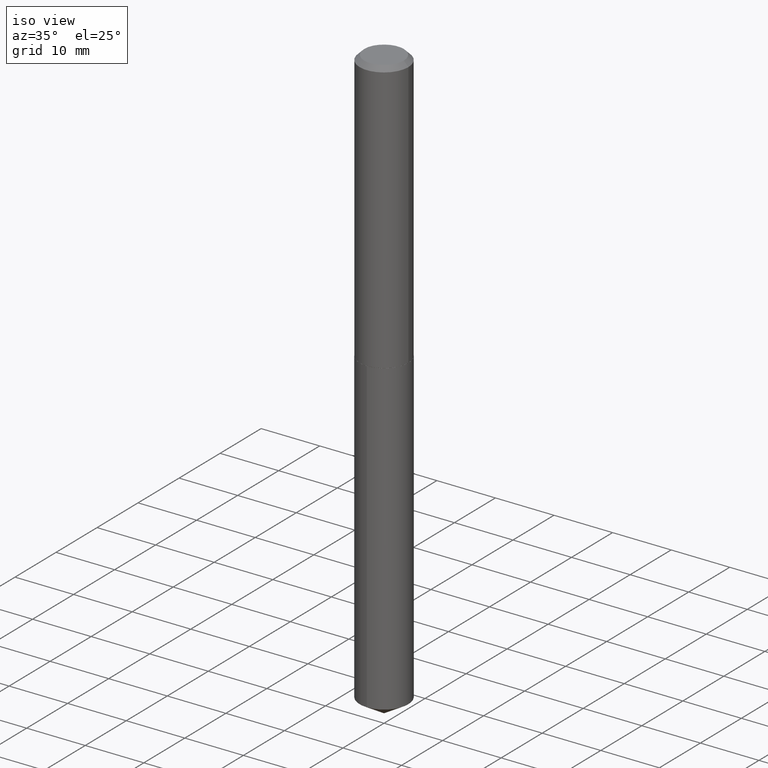
[diagram: clean part render]
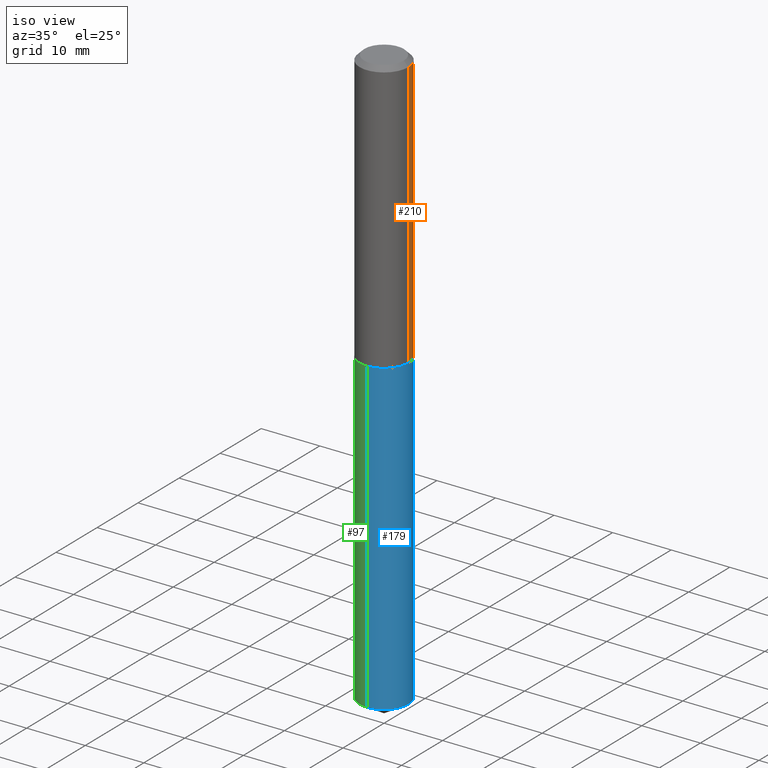
[diagram: same view with three faces highlighted in distinct colors, each labeled with its STEP entity id]
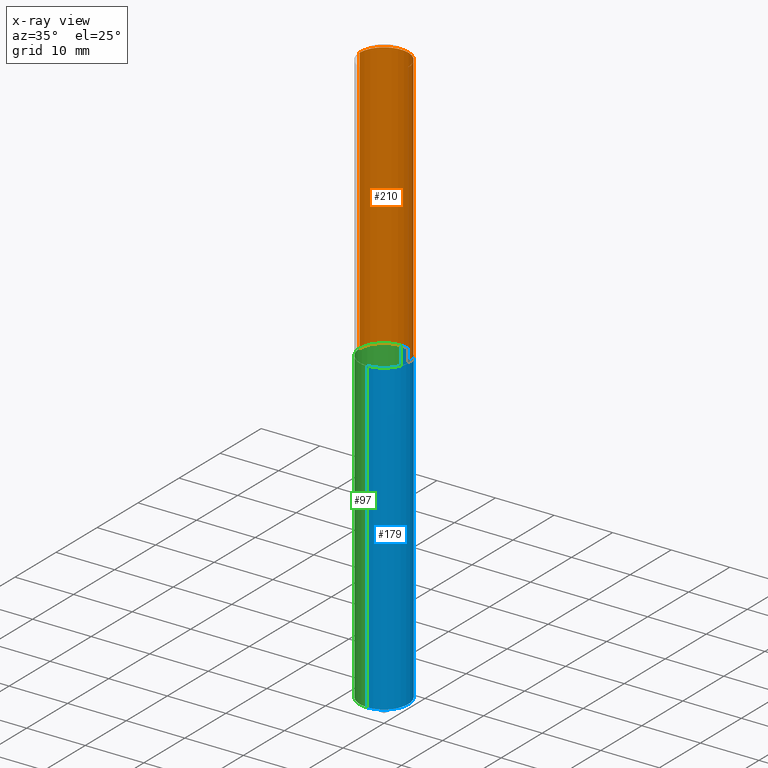
[diagram: x-ray of the same camera — body ghosted, the three highlighted faces saturated]
A machine part, iso view with three faces highlighted in distinct colors.
The next image is the same camera in x-ray (body ghosted, the three faces saturated) — at least one of them is partly hidden behind the body in this view.
Their STEP definitions:

[orange] entity #210 — the highlighted cylindrical surface (edge-blend (fillet) strip) has radius 4.1669 mm, axis along (-0, 0, 1).
#3 = LINE ( 'NONE', #88, #195 ) ;
#35 = AXIS2_PLACEMENT_3D ( 'NONE', #113, #229, #78 ) ;
#46 = VERTEX_POINT ( 'NONE', #383 ) ;
#54 = DIRECTION ( 'NONE',  ( 1.000000000000000000, -6.982962677686268288E-15, 4.876176775795935793E-29 ) ) ;
#60 = EDGE_CURVE ( 'NONE', #118, #72, #141, .T. ) ;
#72 = VERTEX_POINT ( 'NONE', #387 ) ;
#74 = EDGE_CURVE ( 'NONE', #46, #72, #287, .T. ) ;
#78 = DIRECTION ( 'NONE',  ( 1.000000000000000000, -6.982962677686266711E-15, 0.000000000000000000 ) ) ;
#87 = EDGE_LOOP ( 'NONE', ( #136, #268, #190, #99 ) ) ;
#88 = CARTESIAN_POINT ( 'NONE',  ( 0.1640500000000001124, -1.145555027274433043E-15, 7.999368000693238548E-30 ) ) ;
#90 = DIRECTION ( 'NONE',  ( -2.445468806185136877E-29, 3.491481338843145188E-15, 1.000000000000000000 ) ) ;
#99 = ORIENTED_EDGE ( 'NONE', *, *, #371, .F. ) ;
#112 = DIRECTION ( 'NONE',  ( -2.445468806185136877E-29, 3.491481338843145188E-15, 1.000000000000000000 ) ) ;
#113 = CARTESIAN_POINT ( 'NONE',  ( 7.642090019328608793E-31, -1.091087918388491130E-16, -0.03125000000000023592 ) ) ;
#118 = VERTEX_POINT ( 'NONE', #176 ) ;
#136 = ORIENTED_EDGE ( 'NONE', *, *, #351, .T. ) ;
#141 = LINE ( 'NONE', #263, #259 ) ;
#155 = DIRECTION ( 'NONE',  ( 1.000000000000000000, -6.982962677686264344E-15, 0.000000000000000000 ) ) ;
#176 = CARTESIAN_POINT ( 'NONE',  ( -0.1640500000000002512, -5.215385936855286140E-15, -1.827599999999999891 ) ) ;
#190 = ORIENTED_EDGE ( 'NONE', *, *, #74, .F. ) ;
#195 = VECTOR ( 'NONE', #90, 39.37007874015748143 ) ;
#203 = FACE_OUTER_BOUND ( 'NONE', #87, .T. ) ;
#210 = ADVANCED_FACE ( 'NONE', ( #203 ), #322, .T. ) ;
#229 = DIRECTION ( 'NONE',  ( -2.445468806185136597E-29, 3.491481338843145583E-15, 1.000000000000000000 ) ) ;
#237 = CIRCLE ( 'NONE', #364, 0.1640500000000002512 ) ;
#238 = DIRECTION ( 'NONE',  ( -2.445468806185136597E-29, 3.491481338843145583E-15, 1.000000000000000000 ) ) ;
#259 = VECTOR ( 'NONE', #112, 39.37007874015748143 ) ;
#263 = CARTESIAN_POINT ( 'NONE',  ( -0.1640500000000001124, 1.165645358014445154E-15, -8.069513015563179171E-30 ) ) ;
#268 = ORIENTED_EDGE ( 'NONE', *, *, #60, .T. ) ;
#287 = CIRCLE ( 'NONE', #35, 0.1640500000000000291 ) ;
#294 = CARTESIAN_POINT ( 'NONE',  ( 0.000000000000000000, 0.000000000000000000, 0.000000000000000000 ) ) ;
#299 = CARTESIAN_POINT ( 'NONE',  ( 4.469338790183955624E-29, -6.381031294869733069E-15, -1.827599999999999891 ) ) ;
#322 = CYLINDRICAL_SURFACE ( 'NONE', #365, 0.1640500000000001124 ) ;
#337 = CARTESIAN_POINT ( 'NONE',  ( 0.1640500000000002512, -7.526586322144166309E-15, -1.827599999999999891 ) ) ;
#351 = EDGE_CURVE ( 'NONE', #352, #118, #237, .T. ) ;
#352 = VERTEX_POINT ( 'NONE', #337 ) ;
#363 = DIRECTION ( 'NONE',  ( -2.445468806185136597E-29, 3.491481338843145583E-15, 1.000000000000000000 ) ) ;
#364 = AXIS2_PLACEMENT_3D ( 'NONE', #299, #363, #155 ) ;
#365 = AXIS2_PLACEMENT_3D ( 'NONE', #294, #238, #54 ) ;
#371 = EDGE_CURVE ( 'NONE', #352, #46, #3, .T. ) ;
#383 = CARTESIAN_POINT ( 'NONE',  ( 0.1640500000000000291, -1.254663819113281355E-15, -0.03125000000000023592 ) ) ;
#387 = CARTESIAN_POINT ( 'NONE',  ( -0.1640500000000000291, -2.079424685339844945E-15, -0.03125000000000023592 ) ) ;

[blue] entity #179 — the highlighted cylindrical surface (edge-blend (fillet) strip) has radius 4.1669 mm, axis along (-0, 0, 1).
#9 = EDGE_CURVE ( 'NONE', #256, #250, #207, .T. ) ;
#14 = CARTESIAN_POINT ( 'NONE',  ( 9.540838568338950055E-29, -1.362174284697678349E-14, -3.901428815448529708 ) ) ;
#19 = DIRECTION ( 'NONE',  ( -2.445476571768493601E-29, 3.491470218085789051E-15, 1.000000000000000000 ) ) ;
#20 = CARTESIAN_POINT ( 'NONE',  ( 4.470561524587048986E-29, -6.382777035539155361E-15, -1.828100000000000058 ) ) ;
#29 = VECTOR ( 'NONE', #269, 39.37007874015748143 ) ;
#32 = EDGE_CURVE ( 'NONE', #220, #375, #390, .T. ) ;
#40 = DIRECTION ( 'NONE',  ( -2.445476571768493321E-29, 3.491470218085789051E-15, 1.000000000000000000 ) ) ;
#45 = DIRECTION ( 'NONE',  ( -6.982962677686265133E-15, -1.000000000000000000, 3.330506545156066257E-15 ) ) ;
#59 = CARTESIAN_POINT ( 'NONE',  ( 1.165645358014539817E-15, 0.1640499999999864011, -3.901428815448530152 ) ) ;
#70 = EDGE_LOOP ( 'NONE', ( #247, #73, #275, #130 ) ) ;
#73 = ORIENTED_EDGE ( 'NONE', *, *, #107, .T. ) ;
#77 = DIRECTION ( 'NONE',  ( -6.982962677686265133E-15, -1.000000000000000000, 3.330506545156066257E-15 ) ) ;
#102 = AXIS2_PLACEMENT_3D ( 'NONE', #14, #252, #45 ) ;
#107 = EDGE_CURVE ( 'NONE', #375, #250, #358, .T. ) ;
#125 = CARTESIAN_POINT ( 'NONE',  ( 1.165645358014539817E-15, 0.1640499999999935898, -1.828100000000000724 ) ) ;
#130 = ORIENTED_EDGE ( 'NONE', *, *, #334, .F. ) ;
#144 = VECTOR ( 'NONE', #19, 39.37007874015748143 ) ;
#179 = ADVANCED_FACE ( 'NONE', ( #260 ), #357, .T. ) ;
#194 = AXIS2_PLACEMENT_3D ( 'NONE', #20, #385, #77 ) ;
#197 = CARTESIAN_POINT ( 'NONE',  ( 4.470561524587048986E-29, -6.382777035539155361E-15, -1.828100000000000058 ) ) ;
#207 = CIRCLE ( 'NONE', #330, 0.1640500000000000014 ) ;
#220 = VERTEX_POINT ( 'NONE', #264 ) ;
#239 = CARTESIAN_POINT ( 'NONE',  ( -1.145555027274387092E-15, -0.1640500000000063852, -1.828099999999999614 ) ) ;
#247 = ORIENTED_EDGE ( 'NONE', *, *, #32, .T. ) ;
#250 = VERTEX_POINT ( 'NONE', #125 ) ;
#252 = DIRECTION ( 'NONE',  ( -2.445476571768493321E-29, 3.491470218085789051E-15, 1.000000000000000000 ) ) ;
#256 = VERTEX_POINT ( 'NONE', #362 ) ;
#260 = FACE_OUTER_BOUND ( 'NONE', #70, .T. ) ;
#264 = CARTESIAN_POINT ( 'NONE',  ( -1.145555027274336999E-15, -0.1640500000000136849, -3.901428815448529264 ) ) ;
#269 = DIRECTION ( 'NONE',  ( -2.445476571768493601E-29, 3.491470218085789051E-15, 1.000000000000000000 ) ) ;
#275 = ORIENTED_EDGE ( 'NONE', *, *, #9, .F. ) ;
#305 = LINE ( 'NONE', #239, #29 ) ;
#330 = AXIS2_PLACEMENT_3D ( 'NONE', #197, #40, #344 ) ;
#334 = EDGE_CURVE ( 'NONE', #220, #256, #305, .T. ) ;
#344 = DIRECTION ( 'NONE',  ( -6.982962677686265133E-15, -1.000000000000000000, 3.330506545156066257E-15 ) ) ;
#357 = CYLINDRICAL_SURFACE ( 'NONE', #194, 0.1640500000000000014 ) ;
#358 = LINE ( 'NONE', #360, #144 ) ;
#360 = CARTESIAN_POINT ( 'NONE',  ( 1.165645358014488738E-15, 0.1640499999999935898, -1.828100000000000724 ) ) ;
#362 = CARTESIAN_POINT ( 'NONE',  ( -1.145555027274387092E-15, -0.1640500000000063852, -1.828099999999999614 ) ) ;
#375 = VERTEX_POINT ( 'NONE', #59 ) ;
#385 = DIRECTION ( 'NONE',  ( -2.445476571768493321E-29, 3.491470218085789051E-15, 1.000000000000000000 ) ) ;
#390 = CIRCLE ( 'NONE', #102, 0.1640500000000000014 ) ;

[green] entity #97 — the highlighted cylindrical surface (edge-blend (fillet) strip) has radius 4.1669 mm, axis along (-0, 0, 1).
#19 = DIRECTION ( 'NONE',  ( -2.445476571768493601E-29, 3.491470218085789051E-15, 1.000000000000000000 ) ) ;
#29 = VECTOR ( 'NONE', #269, 39.37007874015748143 ) ;
#43 = AXIS2_PLACEMENT_3D ( 'NONE', #217, #241, #242 ) ;
#48 = DIRECTION ( 'NONE',  ( -2.445476571768493321E-29, 3.491470218085789051E-15, 1.000000000000000000 ) ) ;
#49 = CARTESIAN_POINT ( 'NONE',  ( 4.470561524587048986E-29, -6.382777035539155361E-15, -1.828100000000000058 ) ) ;
#51 = DIRECTION ( 'NONE',  ( -6.982962677686265133E-15, -1.000000000000000000, 3.330506545156066257E-15 ) ) ;
#59 = CARTESIAN_POINT ( 'NONE',  ( 1.165645358014539817E-15, 0.1640499999999864011, -3.901428815448530152 ) ) ;
#81 = AXIS2_PLACEMENT_3D ( 'NONE', #326, #289, #51 ) ;
#82 = FACE_OUTER_BOUND ( 'NONE', #370, .T. ) ;
#96 = ORIENTED_EDGE ( 'NONE', *, *, #107, .F. ) ;
#97 = ADVANCED_FACE ( 'NONE', ( #82 ), #149, .T. ) ;
#107 = EDGE_CURVE ( 'NONE', #375, #250, #358, .T. ) ;
#125 = CARTESIAN_POINT ( 'NONE',  ( 1.165645358014539817E-15, 0.1640499999999935898, -1.828100000000000724 ) ) ;
#140 = ORIENTED_EDGE ( 'NONE', *, *, #334, .T. ) ;
#144 = VECTOR ( 'NONE', #19, 39.37007874015748143 ) ;
#146 = CIRCLE ( 'NONE', #81, 0.1640500000000000014 ) ;
#149 = CYLINDRICAL_SURFACE ( 'NONE', #354, 0.1640500000000000014 ) ;
#158 = CIRCLE ( 'NONE', #43, 0.1640500000000000014 ) ;
#191 = ORIENTED_EDGE ( 'NONE', *, *, #206, .T. ) ;
#206 = EDGE_CURVE ( 'NONE', #375, #220, #146, .T. ) ;
#217 = CARTESIAN_POINT ( 'NONE',  ( 4.470561524587048986E-29, -6.382777035539155361E-15, -1.828100000000000058 ) ) ;
#220 = VERTEX_POINT ( 'NONE', #264 ) ;
#233 = DIRECTION ( 'NONE',  ( -6.982962677686265133E-15, -1.000000000000000000, 3.330506545156066257E-15 ) ) ;
#239 = CARTESIAN_POINT ( 'NONE',  ( -1.145555027274387092E-15, -0.1640500000000063852, -1.828099999999999614 ) ) ;
#241 = DIRECTION ( 'NONE',  ( -2.445476571768493321E-29, 3.491470218085789051E-15, 1.000000000000000000 ) ) ;
#242 = DIRECTION ( 'NONE',  ( -6.982962677686265133E-15, -1.000000000000000000, 3.330506545156066257E-15 ) ) ;
#250 = VERTEX_POINT ( 'NONE', #125 ) ;
#256 = VERTEX_POINT ( 'NONE', #362 ) ;
#264 = CARTESIAN_POINT ( 'NONE',  ( -1.145555027274336999E-15, -0.1640500000000136849, -3.901428815448529264 ) ) ;
#269 = DIRECTION ( 'NONE',  ( -2.445476571768493601E-29, 3.491470218085789051E-15, 1.000000000000000000 ) ) ;
#285 = ORIENTED_EDGE ( 'NONE', *, *, #336, .F. ) ;
#289 = DIRECTION ( 'NONE',  ( -2.445476571768493321E-29, 3.491470218085789051E-15, 1.000000000000000000 ) ) ;
#305 = LINE ( 'NONE', #239, #29 ) ;
#326 = CARTESIAN_POINT ( 'NONE',  ( 9.540838568338950055E-29, -1.362174284697678349E-14, -3.901428815448529708 ) ) ;
#334 = EDGE_CURVE ( 'NONE', #220, #256, #305, .T. ) ;
#336 = EDGE_CURVE ( 'NONE', #250, #256, #158, .T. ) ;
#354 = AXIS2_PLACEMENT_3D ( 'NONE', #49, #48, #233 ) ;
#358 = LINE ( 'NONE', #360, #144 ) ;
#360 = CARTESIAN_POINT ( 'NONE',  ( 1.165645358014488738E-15, 0.1640499999999935898, -1.828100000000000724 ) ) ;
#362 = CARTESIAN_POINT ( 'NONE',  ( -1.145555027274387092E-15, -0.1640500000000063852, -1.828099999999999614 ) ) ;
#370 = EDGE_LOOP ( 'NONE', ( #96, #191, #140, #285 ) ) ;
#375 = VERTEX_POINT ( 'NONE', #59 ) ;